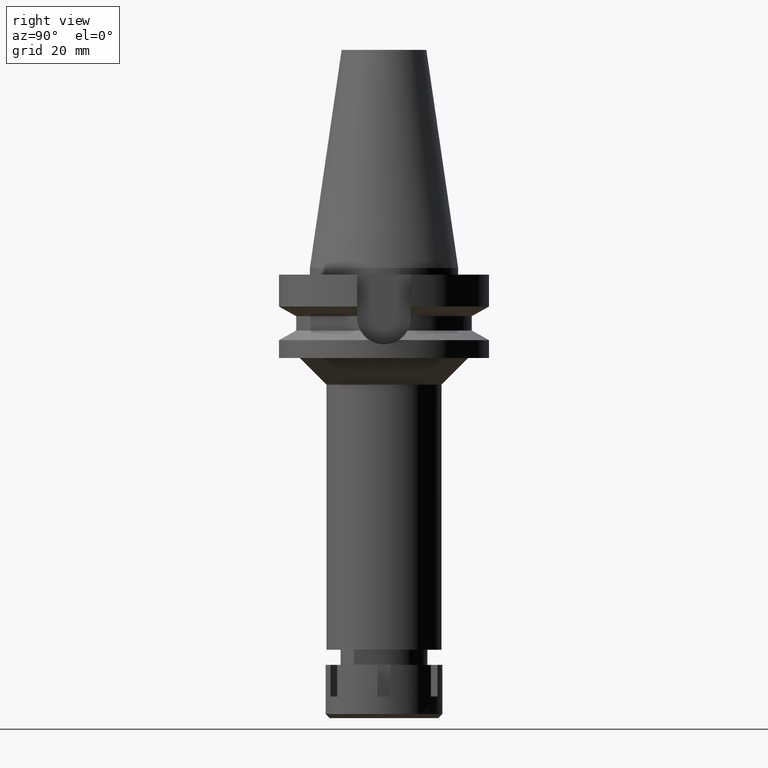
[diagram: clean part render]
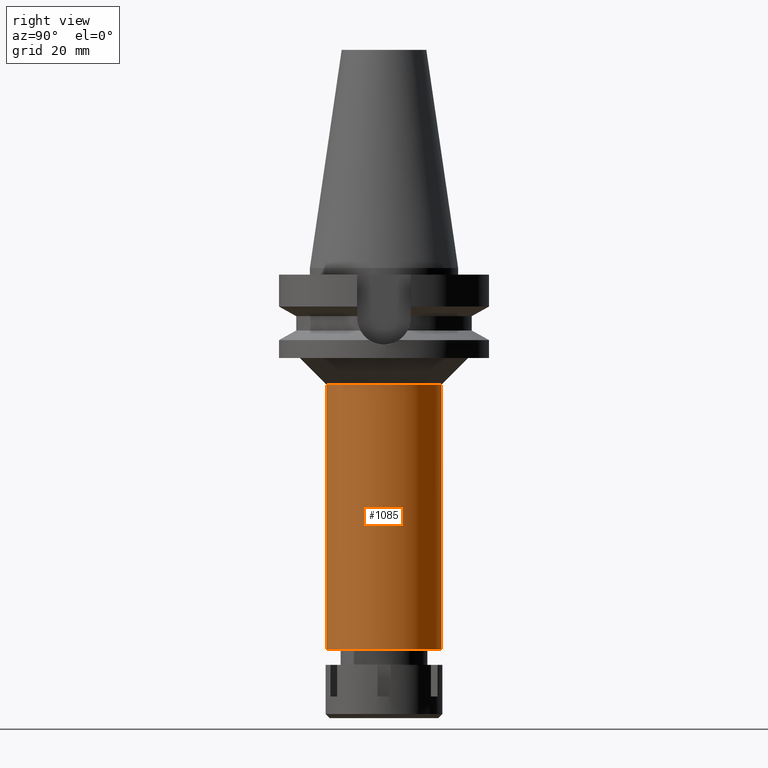
[diagram: same view with one face highlighted and labeled with its STEP entity id]
A machine part, right view. The second image highlights one B-rep face of the part: STEP entity #1085.
In plain terms, the highlighted cylindrical surface (partial cylindrical patch) has radius 17.25 mm, axis along (0, 0, -1).
Its self-contained STEP definition (entity closure, byte-faithful):
#249 = VECTOR ( 'NONE', #967, 1000.000000000000000 ) ;
#397 = DIRECTION ( 'NONE',  ( 0.0000000000000000000, -1.000000000000000000, 0.0000000000000000000 ) ) ;
#407 = CARTESIAN_POINT ( 'NONE',  ( 0.0000000000000000000, -17.25000000000000000, -114.5000000000000000 ) ) ;
#443 = VERTEX_POINT ( 'NONE', #3032 ) ;
#533 = AXIS2_PLACEMENT_3D ( 'NONE', #2664, #2337, #397 ) ;
#927 = DIRECTION ( 'NONE',  ( 0.0000000000000000000, 0.0000000000000000000, 1.000000000000000000 ) ) ;
#967 = DIRECTION ( 'NONE',  ( 0.0000000000000000000, 0.0000000000000000000, -1.000000000000000000 ) ) ;
#1004 = CARTESIAN_POINT ( 'NONE',  ( 0.0000000000000000000, -17.25000000000000000, -35.00000000000000000 ) ) ;
#1085 = ADVANCED_FACE ( 'NONE', ( #3178 ), #2899, .T. ) ;
#1469 = CARTESIAN_POINT ( 'NONE',  ( 0.0000000000000000000, 2.143376827867999896E-14, -114.5000000000000000 ) ) ;
#1533 = ORIENTED_EDGE ( 'NONE', *, *, #3538, .F. ) ;
#1542 = CARTESIAN_POINT ( 'NONE',  ( 0.0000000000000000000, -17.25000000000000000, -35.00000000000000000 ) ) ;
#1666 = VERTEX_POINT ( 'NONE', #407 ) ;
#1743 = ORIENTED_EDGE ( 'NONE', *, *, #3094, .T. ) ;
#1778 = LINE ( 'NONE', #1004, #249 ) ;
#1939 = CARTESIAN_POINT ( 'NONE',  ( 0.0000000000000000000, 17.25000000000000000, -114.5000000000000000 ) ) ;
#1976 = DIRECTION ( 'NONE',  ( 0.0000000000000000000, 0.0000000000000000000, -1.000000000000000000 ) ) ;
#2015 = CARTESIAN_POINT ( 'NONE',  ( 0.0000000000000000000, 0.0000000000000000000, -35.00000000000000000 ) ) ;
#2103 = ORIENTED_EDGE ( 'NONE', *, *, #2794, .T. ) ;
#2140 = EDGE_CURVE ( 'NONE', #443, #2799, #3643, .T. ) ;
#2203 = LINE ( 'NONE', #2732, #3556 ) ;
#2337 = DIRECTION ( 'NONE',  ( 0.0000000000000000000, 0.0000000000000000000, -1.000000000000000000 ) ) ;
#2578 = DIRECTION ( 'NONE',  ( 0.0000000000000000000, -1.000000000000000000, 0.0000000000000000000 ) ) ;
#2582 = CIRCLE ( 'NONE', #3287, 17.25000000000000000 ) ;
#2664 = CARTESIAN_POINT ( 'NONE',  ( 0.0000000000000000000, 2.143376827867999896E-14, 75.02000000000001023 ) ) ;
#2732 = CARTESIAN_POINT ( 'NONE',  ( 0.0000000000000000000, 17.25000000000000000, -35.00000000000000000 ) ) ;
#2794 = EDGE_CURVE ( 'NONE', #2799, #1666, #1778, .T. ) ;
#2799 = VERTEX_POINT ( 'NONE', #1542 ) ;
#2899 = CYLINDRICAL_SURFACE ( 'NONE', #533, 17.25000000000000000 ) ;
#3032 = CARTESIAN_POINT ( 'NONE',  ( 0.0000000000000000000, 17.25000000000000000, -35.00000000000000000 ) ) ;
#3094 = EDGE_CURVE ( 'NONE', #1666, #3525, #2582, .T. ) ;
#3112 = AXIS2_PLACEMENT_3D ( 'NONE', #2015, #3115, #3405 ) ;
#3115 = DIRECTION ( 'NONE',  ( 0.0000000000000000000, 0.0000000000000000000, -1.000000000000000000 ) ) ;
#3178 = FACE_OUTER_BOUND ( 'NONE', #3441, .T. ) ;
#3280 = ORIENTED_EDGE ( 'NONE', *, *, #2140, .T. ) ;
#3287 = AXIS2_PLACEMENT_3D ( 'NONE', #1469, #927, #2578 ) ;
#3405 = DIRECTION ( 'NONE',  ( 0.0000000000000000000, 1.000000000000000000, 0.0000000000000000000 ) ) ;
#3441 = EDGE_LOOP ( 'NONE', ( #3280, #2103, #1743, #1533 ) ) ;
#3525 = VERTEX_POINT ( 'NONE', #1939 ) ;
#3538 = EDGE_CURVE ( 'NONE', #443, #3525, #2203, .T. ) ;
#3556 = VECTOR ( 'NONE', #1976, 1000.000000000000000 ) ;
#3643 = CIRCLE ( 'NONE', #3112, 17.25000000000000000 ) ;